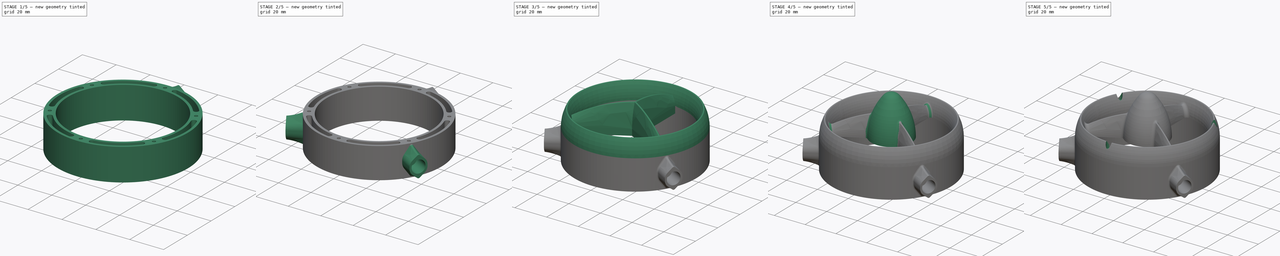
[diagram: build sequence overview — one tinted view per stage of 5, left to right]
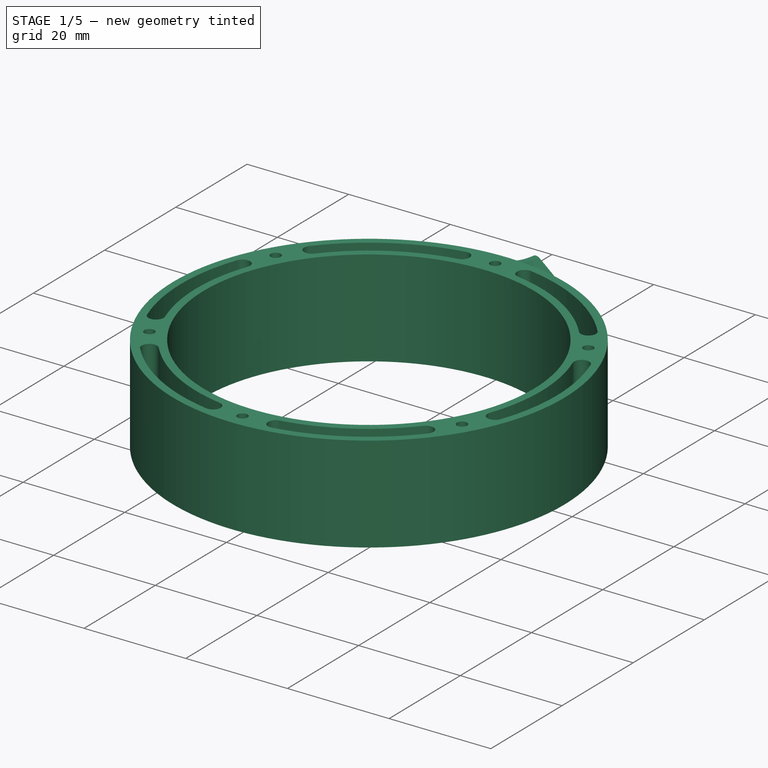
[diagram: stage 1 of 5 — iso view after this stage's code; geometry added in this stage tinted green]
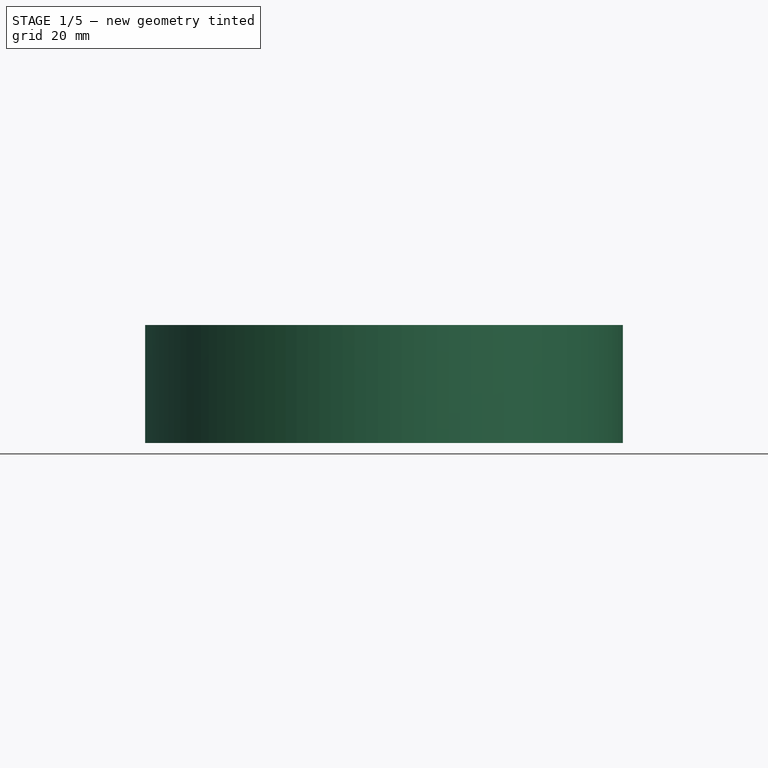
[diagram: stage 1 of 5 — front view after this stage's code; geometry added in this stage tinted green]
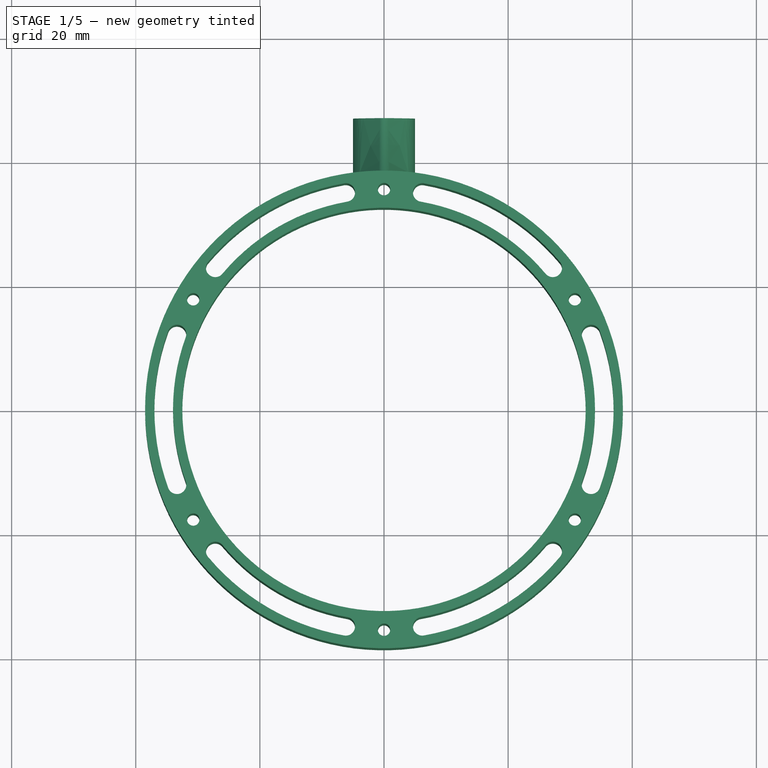
[diagram: stage 1 of 5 — top view after this stage's code; geometry added in this stage tinted green]
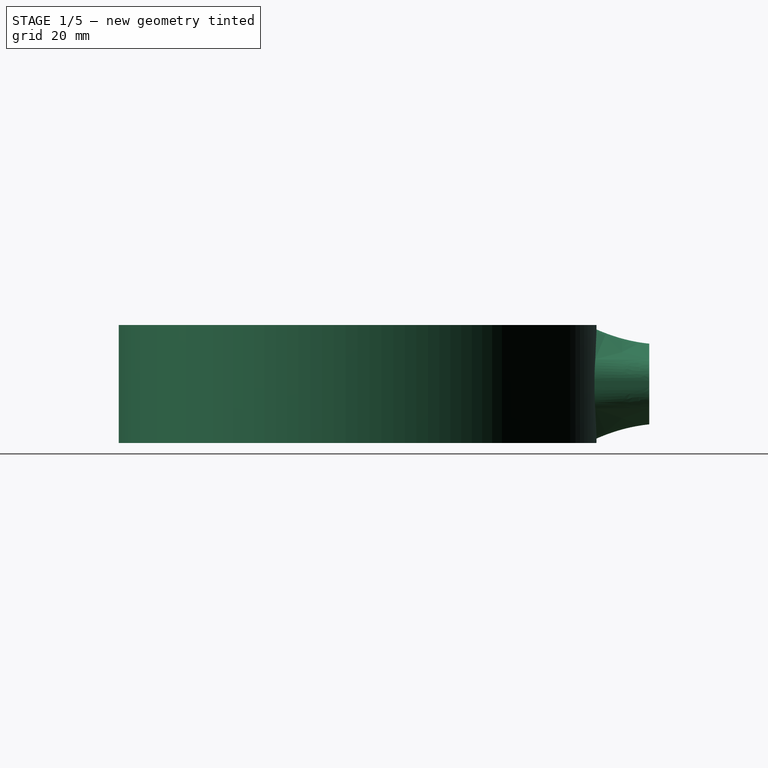
[diagram: stage 1 of 5 — right view after this stage's code; geometry added in this stage tinted green]
FCSTD DOCUMENT  (FreeCAD 0.18R4 (GitTag))
Label: anemometer_frame
License: All rights reserved
LicenseURL: http://en.wikipedia.org/wiki/All_rights_reserved
objects: Sketcher::SketchObject×15, PartDesign::PolarPattern×5, PartDesign::Pocket×4, PartDesign::Revolution×2, PartDesign::AdditiveLoft×2, PartDesign::Fillet×2, PartDesign::Hole×2, PartDesign::Body×2, PartDesign::Pad×1
note: 46 computed .brp shape members not serialized (recipe doc carries the construction recipe); baked Part::Feature solids carry a one-line shape summary decoded from their .brp

FEATURE [PartDesign::Body] Body  label="FRONT"
  Group = -> [Sketch,Revolution,Sketch001,Sketch002,Sketch003,Sketch004,AdditiveLoft,Sketch005,PolarPattern,Revolution001,Pocket,Fillet,Sketch006,Pocket001,Sketch007,Hole,Sketch008,Hole001,PolarPattern001]
  Origin = -> Origin
  Tip = -> PolarPattern001
FEATURE [Sketcher::SketchObject] Sketch009
  MapMode = 5
  Placement = pos=(0,0,0) rot=(0,1,0;3.14159rad)
  Support = -> [XY_Plane001]
  sketch-geometry (2):
    g0: Circle CenterX=0 CenterY=0 CenterZ=0 NormalX=0 NormalY=0 NormalZ=1 AngleXU=0 Radius=38.5
    g1: Circle CenterX=0 CenterY=0 CenterZ=0 NormalX=0 NormalY=0 NormalZ=1 AngleXU=0 Radius=32.5
  constraints (4):
    c: Coincident(g0,g-1)
    c: Coincident(g1,g0)
    c: Diameter(g0) = 77
    c: Diameter(g1) = 65
FEATURE [Sketcher::SketchObject] Sketch010
  MapMode = 5
  Placement = pos=(0,0,0) rot=(0,1,0;3.14159rad)
  Support = -> [XY_Plane001]
  sketch-geometry (8):
    g0: ArcOfCircle CenterX=-3.6e-15 CenterY=0 CenterZ=0 NormalX=0 NormalY=0 NormalZ=1 AngleXU=0 Radius=37 StartAngle=1.74533 EndAngle=2.44346
    g1: ArcOfCircle CenterX=-3.6e-15 CenterY=0 CenterZ=0 NormalX=0 NormalY=0 NormalZ=1 AngleXU=0 Radius=34 StartAngle=1.74533 EndAngle=2.44346
    g2: ArcOfCircle CenterX=-27.1946 CenterY=22.819 CenterZ=0 NormalX=0 NormalY=0 NormalZ=1 AngleXU=0 Radius=1.5 StartAngle=2.44346 EndAngle=5.58505
    g3: ArcOfCircle CenterX=-6.16451 CenterY=34.9607 CenterZ=0 NormalX=0 NormalY=0 NormalZ=1 AngleXU=0 Radius=1.5 StartAngle=4.88692 EndAngle=8.02851
    g4: LineSegment [constr] StartX=-6.16451 StartY=34.9607 StartZ=0 EndX=-3.6e-15 EndY=0 EndZ=0
    g5: LineSegment [constr] StartX=-3.6e-15 StartY=0 StartZ=0 EndX=-27.1946 EndY=22.819 EndZ=0
    g6: Circle CenterX=-30.7439 CenterY=17.75 CenterZ=0 NormalX=0 NormalY=0 NormalZ=1 AngleXU=0 Radius=1
    g7: LineSegment [constr] StartX=-30.7439 StartY=17.75 StartZ=0 EndX=-3.6e-15 EndY=0 EndZ=0
  constraints (19):
    c: Coincident(g0,g-1)
    c: Coincident(g1,g0)
    c: Tangent(g3,g0) = -1.5708
    c: Tangent(g3,g1) = 1.5708
    c: Tangent(g2,g1) = 1.5708
    c: Tangent(g2,g0) = -1.5708
    c: Coincident(g4,g3)
    c: Coincident(g4,g0)
    c: Coincident(g5,g0)
    c: Coincident(g5,g2)
    c: Angle(g-2,g4) = 0.174533
    c: Angle(g-2,g5) = 0.872665
    c: Radius(g1) = 34
    c: Radius(g0) = 37
    c: Coincident(g7,g6)
    c: Coincident(g7,g0)
    c: Distance(g7) = 35.5
    c: Diameter(g6) = 2
    c: Angle(g-2,g7) = 1.0472
FEATURE [PartDesign::Pad] Pad
  Length = 19
  Length2 = 100
  Profile = -> Sketch009
  Type = 0
FEATURE [PartDesign::Pocket] Pocket002
  BaseFeature = -> Pad
  Length = 5
  Length2 = 100
  Profile = -> Sketch010
  Reversed = true
  Type = 1
FEATURE [PartDesign::PolarPattern] PolarPattern002
  Angle = 360
  Axis = -> Z_Axis001
  BaseFeature = -> Pocket002
  Occurrences = 6
  Originals = -> [Pocket002]
FEATURE [Sketcher::SketchObject] Sketch011
  AttachmentOffset = pos=(0,0,37) rot=(0,0,1;0rad)
  MapMode = 5
  Placement = pos=(0,37,-8.2e-15) rot=(0,0.707107,0.707107;3.14159rad)
  Support = -> [XZ_Plane001]
  sketch-geometry (13):
    g0: Circle [constr] CenterX=0 CenterY=-9.5 CenterZ=0 NormalX=0 NormalY=0 NormalZ=1 AngleXU=0 Radius=3.9
    g1: LineSegment StartX=-0.847732 StartY=-0.469575 StartZ=0 EndX=-3.99526 EndY=-5.5 EndZ=0
    g2: LineSegment StartX=-5 StartY=-9 StartZ=0 EndX=-5 EndY=-10 EndZ=0
    g3: LineSegment StartX=-3.99526 StartY=-13.5 StartZ=0 EndX=-0.847732 EndY=-18.5304 EndZ=0
    g4: LineSegment StartX=0.847732 StartY=-18.5304 StartZ=0 EndX=3.99526 EndY=-13.5 EndZ=0
    g5: LineSegment StartX=5 StartY=-10 StartZ=0 EndX=5 EndY=-9 EndZ=0
    g6: LineSegment StartX=3.99526 StartY=-5.5 StartZ=0 EndX=0.847732 EndY=-0.469575 EndZ=0
    g7: ArcOfCircle CenterX=1.59849 CenterY=-9 CenterZ=0 NormalX=0 NormalY=0 NormalZ=1 AngleXU=0 Radius=6.59849 StartAngle=2.58249 EndAngle=3.14159
    g8: ArcOfCircle CenterX=-1.59849 CenterY=-9 CenterZ=0 NormalX=0 NormalY=0 NormalZ=1 AngleXU=0 Radius=6.59849 StartAngle=1e-16 EndAngle=0.559102
    g9: ArcOfCircle CenterX=-1.59849 CenterY=-10 CenterZ=0 NormalX=0 NormalY=0 NormalZ=1 AngleXU=0 Radius=6.59849 StartAngle=5.72408 EndAngle=6.28319
    g10: ArcOfCircle CenterX=1.59849 CenterY=-10 CenterZ=0 NormalX=0 NormalY=0 NormalZ=1 AngleXU=0 Radius=6.59849 StartAngle=3.14159 EndAngle=3.70069
    g11: ArcOfCircle CenterX=0 CenterY=-1 CenterZ=0 NormalX=0 NormalY=0 NormalZ=1 AngleXU=0 Radius=1 StartAngle=0.559102 EndAngle=2.58249
    g12: ArcOfCircle CenterX=0 CenterY=-18 CenterZ=0 NormalX=0 NormalY=0 NormalZ=1 AngleXU=0 Radius=1 StartAngle=3.70069 EndAngle=5.72408
  constraints (33):
    c: PointOnObject(g0,g-2)
    c: DistanceY(g0,g-1) = 9.5
    c: Diameter(g0) = 7.8
    c: Vertical(g2)
    c: Vertical(g5)
    c: Tangent(g2,g7) = -1.5708
    c: Tangent(g1,g7) = -1.5708
    c: Tangent(g6,g8) = -1.5708
    c: Tangent(g5,g8) = -1.5708
    c: Tangent(g5,g9) = -1.5708
    c: Tangent(g4,g9) = -1.5708
    c: Tangent(g3,g10) = -1.5708
    c: Tangent(g2,g10) = -1.5708
    c: Tangent(g1,g11) = -1.5708
    c: Tangent(g6,g11) = -1.5708
    c: Tangent(g3,g12) = -1.5708
    c: Tangent(g4,g12) = -1.5708
    c: PointOnObject(g12,g-2)
    c: PointOnObject(g11,g-2)
    c: Equal(g11,g12)
    c: Radius(g11) = 1
    c: Equal(g7,g8)
    c: Equal(g8,g9)
    c: Equal(g9,g10)
    c: Equal(g2,g5)
    c: Equal(g4,g3)
    c: Equal(g3,g1)
    c: Equal(g1,g6)
    c: DistanceY(g11,g-1) = 1
    c: DistanceY(g12,g-1) = 18
    c: DistanceX(g2,g5) = 10
    c: DistanceY(g2,g1) = 3.5
    c: DistanceY(g2,g2) = 1
FEATURE [Sketcher::SketchObject] Sketch012
  AttachmentOffset = pos=(0,0,37) rot=(0,0,1;0rad)
  MapMode = 5
  Placement = pos=(0,42,8.2e-15) rot=(0,0.707107,0.707107;3.14159rad)
  sketch-geometry (13):
    g0: Circle [constr] CenterX=0 CenterY=-9.5 CenterZ=0 NormalX=0 NormalY=0 NormalZ=1 AngleXU=0 Radius=3.9
    g1: LineSegment StartX=-0.737987 StartY=-2.32518 StartZ=0 EndX=-3.64104 EndY=-5.5 EndZ=0
    g2: LineSegment StartX=-5 StartY=-9 StartZ=0 EndX=-5 EndY=-10 EndZ=0
    g3: LineSegment StartX=-3.64104 StartY=-13.5 StartZ=0 EndX=-0.737987 EndY=-16.6748 EndZ=0
    g4: LineSegment StartX=0.737987 StartY=-16.6748 StartZ=0 EndX=3.64104 EndY=-13.5 EndZ=0
    g5: LineSegment StartX=5 StartY=-10 StartZ=0 EndX=5 EndY=-9 EndZ=0
    g6: LineSegment StartX=3.64104 StartY=-5.5 StartZ=0 EndX=0.737987 EndY=-2.32518 EndZ=0
    g7: ArcOfCircle CenterX=0.186603 CenterY=-9 CenterZ=0 NormalX=0 NormalY=0 NormalZ=1 AngleXU=0 Radius=5.1866 StartAngle=2.40088 EndAngle=3.14159
    g8: ArcOfCircle CenterX=-0.186603 CenterY=-9 CenterZ=0 NormalX=0 NormalY=0 NormalZ=1 AngleXU=0 Radius=5.1866 StartAngle=0 EndAngle=0.740715
    g9: ArcOfCircle CenterX=-0.186603 CenterY=-10 CenterZ=0 NormalX=0 NormalY=0 NormalZ=1 AngleXU=0 Radius=5.1866 StartAngle=5.54247 EndAngle=6.28319
    g10: ArcOfCircle CenterX=0.186603 CenterY=-10 CenterZ=0 NormalX=0 NormalY=0 NormalZ=1 AngleXU=0 Radius=5.1866 StartAngle=3.14159 EndAngle=3.88231
    g11: ArcOfCircle CenterX=0 CenterY=-3 CenterZ=0 NormalX=0 NormalY=0 NormalZ=1 AngleXU=0 Radius=1 StartAngle=0.740715 EndAngle=2.40088
    g12: ArcOfCircle CenterX=0 CenterY=-16 CenterZ=0 NormalX=0 NormalY=0 NormalZ=1 AngleXU=0 Radius=1 StartAngle=3.88231 EndAngle=5.54247
  constraints (33):
    c: PointOnObject(g0,g-2)
    c: DistanceY(g0,g-1) = 9.5
    c: Diameter(g0) = 7.8
    c: Vertical(g2)
    c: Vertical(g5)
    c: Tangent(g2,g7) = -1.5708
    c: Tangent(g1,g7) = -1.5708
    c: Tangent(g6,g8) = -1.5708
    c: Tangent(g5,g8) = -1.5708
    c: Tangent(g5,g9) = -1.5708
    c: Tangent(g4,g9) = -1.5708
    c: Tangent(g3,g10) = -1.5708
    c: Tangent(g2,g10) = -1.5708
    c: Tangent(g1,g11) = -1.5708
    c: Tangent(g6,g11) = -1.5708
    c: Tangent(g3,g12) = -1.5708
    c: Tangent(g4,g12) = -1.5708
    c: PointOnObject(g12,g-2)
    c: PointOnObject(g11,g-2)
    c: Equal(g11,g12)
    c: Radius(g11) = 1
    c: Equal(g7,g8)
    c: Equal(g8,g9)
    c: Equal(g9,g10)
    c: Equal(g2,g5)
    c: Equal(g4,g3)
    c: Equal(g3,g1)
    c: Equal(g1,g6)
    c: DistanceY(g11,g-1) = 3
    c: DistanceY(g12,g-1) = 16
    c: DistanceX(g2,g5) = 10
    c: DistanceY(g2,g1) = 3.5
    c: DistanceY(g2,g2) = 1
FEATURE [Sketcher::SketchObject] Sketch013
  AttachmentOffset = pos=(0,0,37) rot=(0,0,1;0rad)
  MapMode = 5
  Placement = pos=(0,47,8e-15) rot=(0,0.707107,0.707107;3.14159rad)
  sketch-geometry (13):
    g0: Circle [constr] CenterX=0 CenterY=-9.5 CenterZ=0 NormalX=0 NormalY=0 NormalZ=1 AngleXU=0 Radius=3.9
    g1: LineSegment StartX=-0.640321 StartY=-3.23189 StartZ=0 EndX=-3.36107 EndY=-5.5 EndZ=0
    g2: LineSegment StartX=-5 StartY=-9 StartZ=0 EndX=-5 EndY=-10 EndZ=0
    g3: LineSegment StartX=-3.36107 StartY=-13.5 StartZ=0 EndX=-0.640321 EndY=-15.7681 EndZ=0
    g4: LineSegment StartX=0.640321 StartY=-15.7681 StartZ=0 EndX=3.36107 EndY=-13.5 EndZ=0
    g5: LineSegment StartX=5 StartY=-10 StartZ=0 EndX=5 EndY=-9 EndZ=0
    g6: LineSegment StartX=3.36107 StartY=-5.5 StartZ=0 EndX=0.640321 EndY=-3.23189 EndZ=0
    g7: ArcOfCircle CenterX=-0.443346 CenterY=-9 CenterZ=0 NormalX=0 NormalY=0 NormalZ=1 AngleXU=0 Radius=4.55665 StartAngle=2.26571 EndAngle=3.14159
    g8: ArcOfCircle CenterX=0.443346 CenterY=-9 CenterZ=0 NormalX=0 NormalY=0 NormalZ=1 AngleXU=0 Radius=4.55665 StartAngle=1e-16 EndAngle=0.87588
    g9: ArcOfCircle CenterX=0.443346 CenterY=-10 CenterZ=0 NormalX=0 NormalY=0 NormalZ=1 AngleXU=0 Radius=4.55665 StartAngle=5.4073 EndAngle=6.28319
    g10: ArcOfCircle CenterX=-0.443346 CenterY=-10 CenterZ=0 NormalX=0 NormalY=0 NormalZ=1 AngleXU=0 Radius=4.55665 StartAngle=3.14159 EndAngle=4.01747
    g11: ArcOfCircle CenterX=0 CenterY=-4 CenterZ=0 NormalX=0 NormalY=0 NormalZ=1 AngleXU=0 Radius=1 StartAngle=0.87588 EndAngle=2.26571
    g12: ArcOfCircle CenterX=0 CenterY=-15 CenterZ=0 NormalX=0 NormalY=0 NormalZ=1 AngleXU=0 Radius=1 StartAngle=4.01747 EndAngle=5.4073
  constraints (33):
    c: PointOnObject(g0,g-2)
    c: DistanceY(g0,g-1) = 9.5
    c: Diameter(g0) = 7.8
    c: Vertical(g2)
    c: Vertical(g5)
    c: Tangent(g2,g7) = -1.5708
    c: Tangent(g1,g7) = -1.5708
    c: Tangent(g6,g8) = -1.5708
    c: Tangent(g5,g8) = -1.5708
    c: Tangent(g5,g9) = -1.5708
    c: Tangent(g4,g9) = -1.5708
    c: Tangent(g3,g10) = -1.5708
    c: Tangent(g2,g10) = -1.5708
    c: Tangent(g1,g11) = -1.5708
    c: Tangent(g6,g11) = -1.5708
    c: Tangent(g3,g12) = -1.5708
    c: Tangent(g4,g12) = -1.5708
    c: PointOnObject(g12,g-2)
    c: PointOnObject(g11,g-2)
    c: Equal(g11,g12)
    c: Radius(g11) = 1
    c: Equal(g7,g8)
    c: Equal(g8,g9)
    c: Equal(g9,g10)
    c: Equal(g2,g5)
    c: Equal(g4,g3)
    c: Equal(g3,g1)
    c: Equal(g1,g6)
    c: DistanceY(g11,g-1) = 4
    c: DistanceY(g12,g-1) = 15
    c: DistanceX(g2,g5) = 10
    c: DistanceY(g2,g1) = 3.5
    c: DistanceY(g2,g2) = 1
FEATURE [PartDesign::AdditiveLoft] AdditiveLoft001
  BaseFeature = -> PolarPattern002
  Closed = false
  Profile = -> Sketch011
  Ruled = false
  Sections = -> [Sketch011,Sketch012,Sketch013]
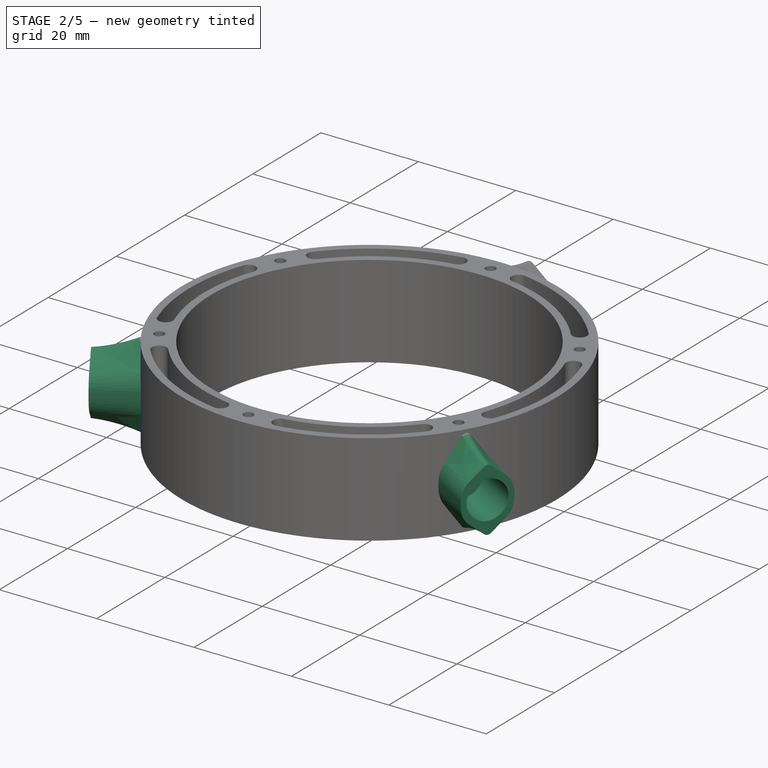
[diagram: stage 2 of 5 — iso view after this stage's code; geometry added in this stage tinted green]
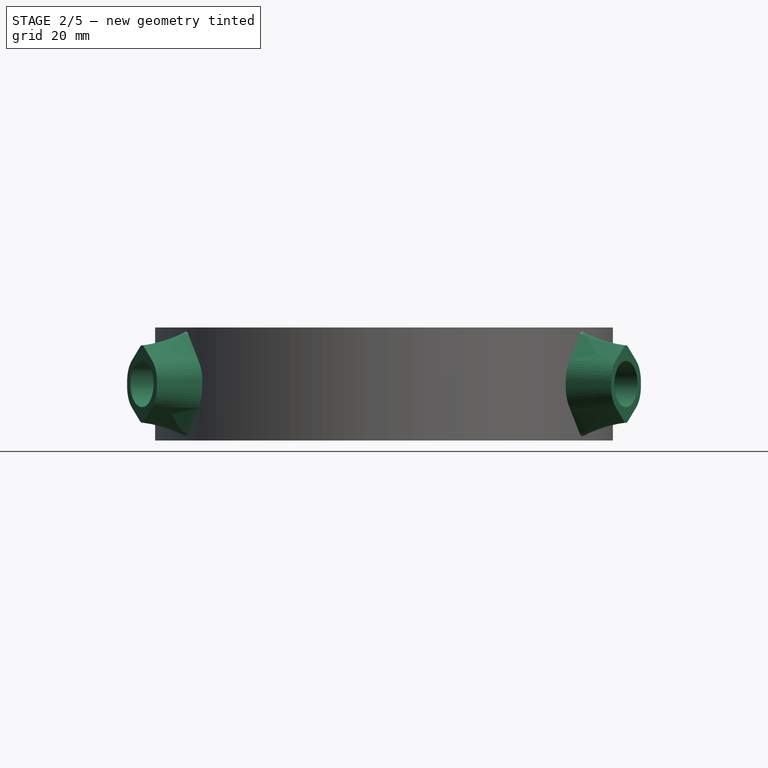
[diagram: stage 2 of 5 — front view after this stage's code; geometry added in this stage tinted green]
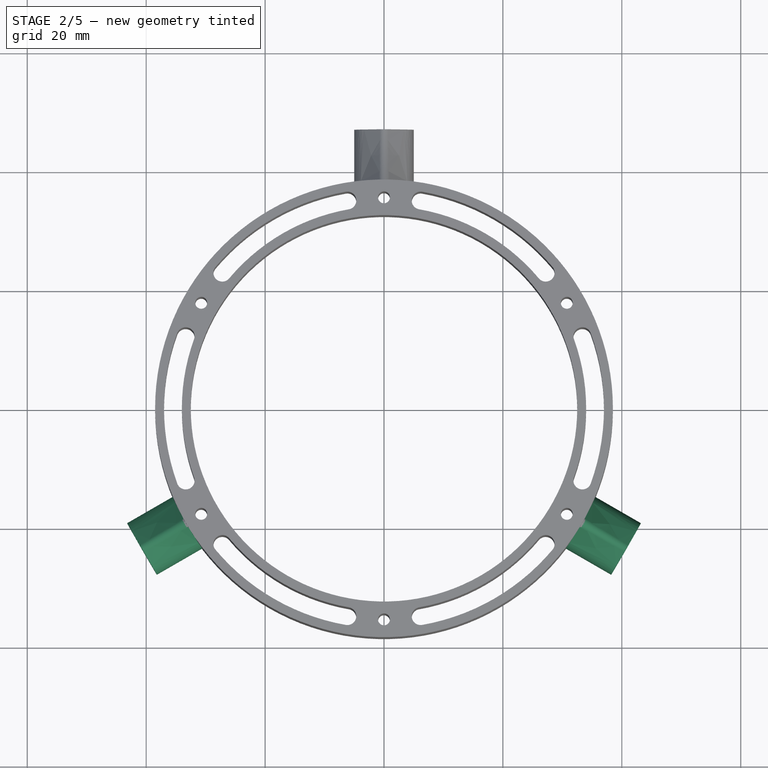
[diagram: stage 2 of 5 — top view after this stage's code; geometry added in this stage tinted green]
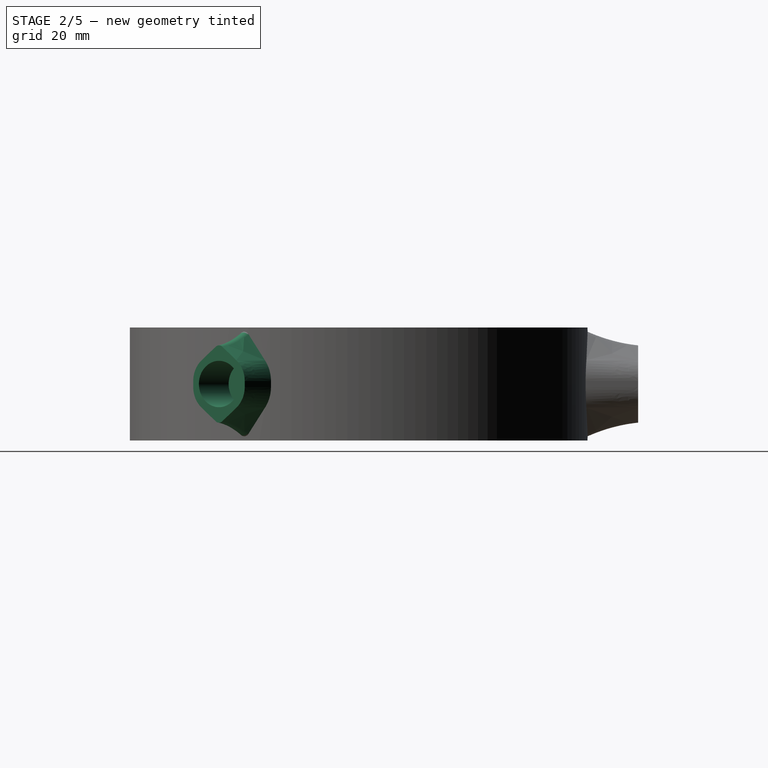
[diagram: stage 2 of 5 — right view after this stage's code; geometry added in this stage tinted green]
FEATURE [PartDesign::PolarPattern] PolarPattern003
  Angle = 360
  Axis = -> Z_Axis001
  BaseFeature = -> AdditiveLoft001
  Occurrences = 3
  Originals = -> [AdditiveLoft001]
FEATURE [Sketcher::SketchObject] Sketch014
  MapMode = 5
  Placement = pos=(0,47,0) rot=(0,0.707107,0.707107;3.14159rad)
  Support = -> [PolarPattern003]
  sketch-geometry (1):
    g0: Circle CenterX=0 CenterY=-9.5 CenterZ=0 NormalX=0 NormalY=0 NormalZ=1 AngleXU=0 Radius=3.9
  constraints (3):
    c: PointOnObject(g0,g-2)
    c: DistanceY(g0,g-1) = 9.5
    c: Diameter(g0) = 7.8
FEATURE [PartDesign::Pocket] Pocket003
  BaseFeature = -> PolarPattern003
  Length = 10
  Length2 = 100
  Profile = -> Sketch014
  Type = 0
FEATURE [PartDesign::PolarPattern] PolarPattern004
  Angle = 360
  Axis = -> Z_Axis001
  BaseFeature = -> Pocket003
  Occurrences = 3
  Originals = -> [Pocket003]
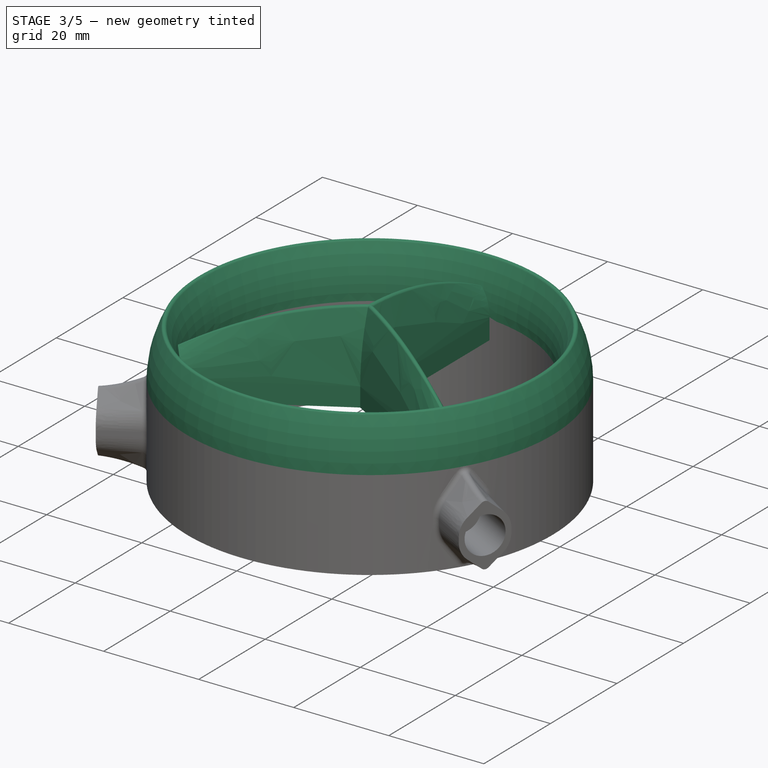
[diagram: stage 3 of 5 — iso view after this stage's code; geometry added in this stage tinted green]
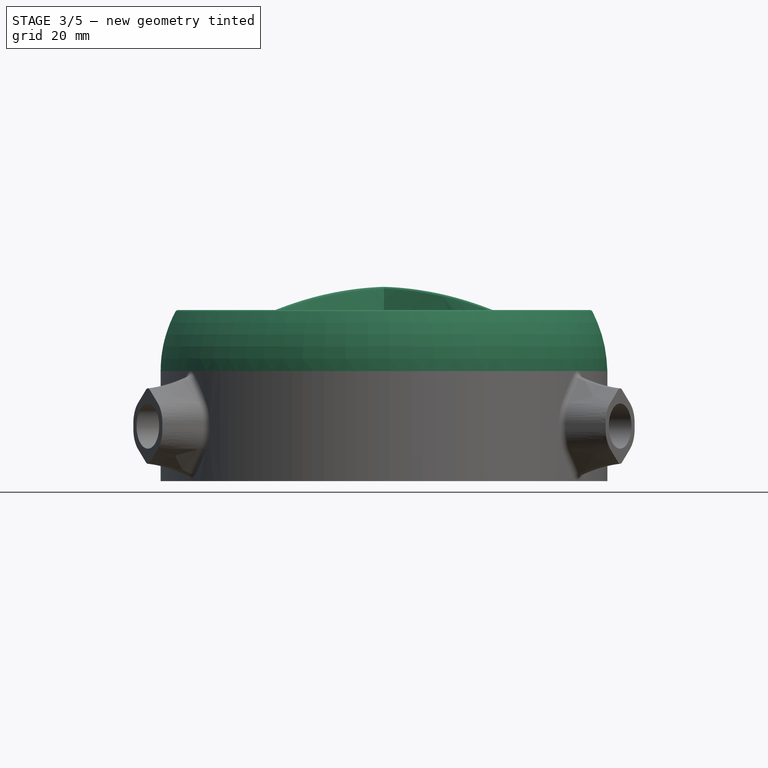
[diagram: stage 3 of 5 — front view after this stage's code; geometry added in this stage tinted green]
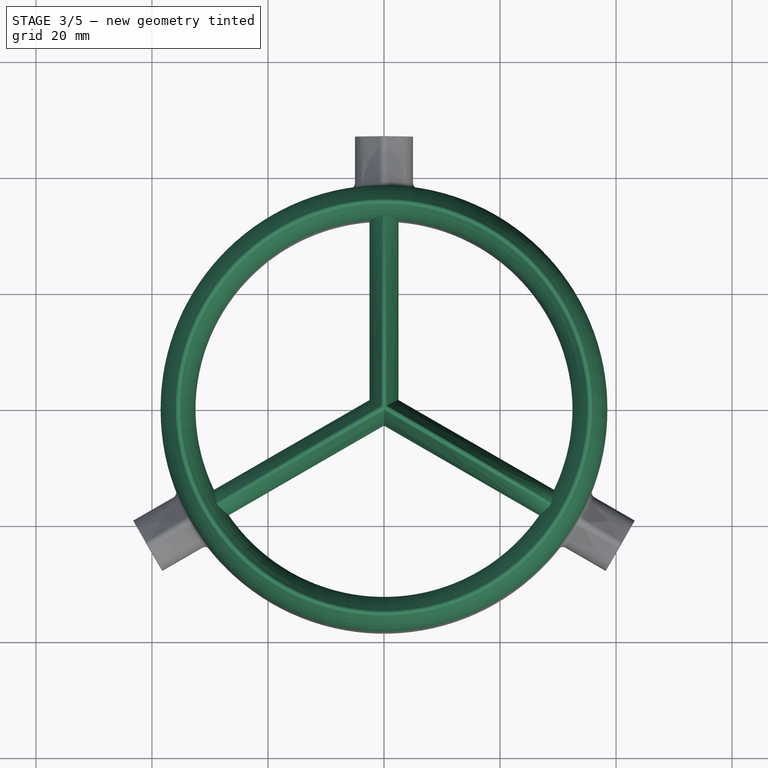
[diagram: stage 3 of 5 — top view after this stage's code; geometry added in this stage tinted green]
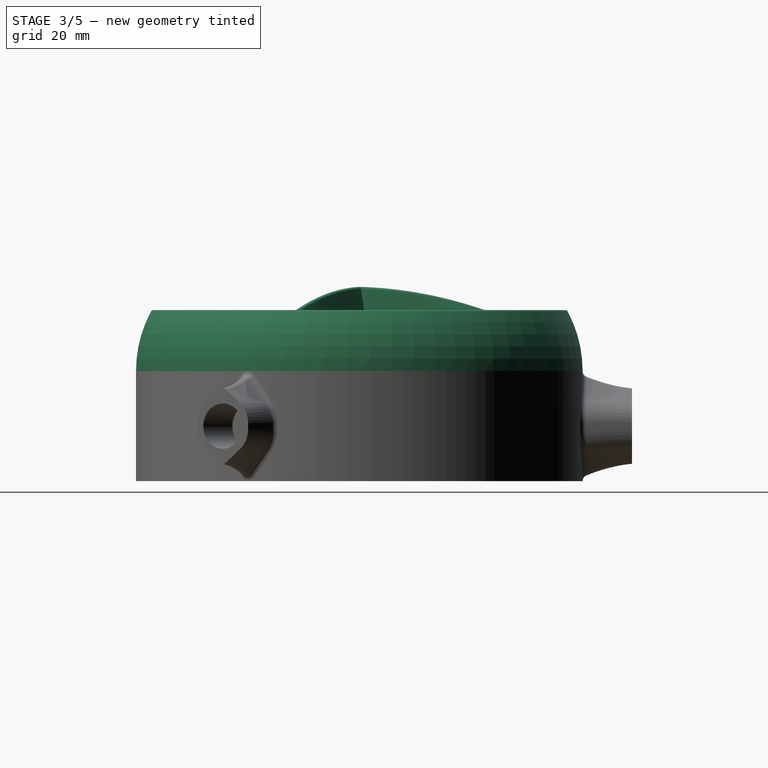
[diagram: stage 3 of 5 — right view after this stage's code; geometry added in this stage tinted green]
FEATURE [Sketcher::SketchObject] Sketch
  MapMode = 5
  Placement = pos=(0,0,0) rot=(1,0,0;1.5708rad)
  Support = -> [XZ_Plane]
  sketch-geometry (7):
    g0: ArcOfCircle CenterX=-16.75 CenterY=0 CenterZ=0 NormalX=0 NormalY=0 NormalZ=1 AngleXU=0 Radius=21.75 StartAngle=2.65164 EndAngle=3.14159
    g1: ArcOfCircle CenterX=-54.25 CenterY=0 CenterZ=0 NormalX=0 NormalY=0 NormalZ=1 AngleXU=0 Radius=21.75 StartAngle=0 EndAngle=0.489957
    g2: ArcOfCircle CenterX=-35.5 CenterY=10 CenterZ=0 NormalX=0 NormalY=0 NormalZ=1 AngleXU=0 Radius=0.5 StartAngle=0.489957 EndAngle=2.65164
    g3: LineSegment [constr] StartX=-35.9412 StartY=10.2353 StartZ=0 EndX=-35.0588 EndY=10.2353 EndZ=0
    g4: LineSegment [constr] StartX=-38.5 StartY=0 StartZ=0 EndX=-38.5 EndY=-4 EndZ=0
    g5: LineSegment [constr] StartX=-32.5 StartY=0 StartZ=0 EndX=-32.5 EndY=-4 EndZ=0
    g6: LineSegment StartX=-38.5 StartY=0 StartZ=0 EndX=-32.5 EndY=0 EndZ=0
  constraints (19):
    c: PointOnObject(g0,g-1)
    c: PointOnObject(g0,g-1)
    c: PointOnObject(g1,g-1)
    c: PointOnObject(g1,g-1)
    c: Tangent(g2,g1) = -1.5708
    c: Tangent(g2,g0) = -1.5708
    c: Coincident(g3,g0)
    c: Coincident(g3,g1)
    c: Horizontal(g3)
    c: Diameter(g2) = 1
    c: DistanceY(g-1,g2) = 10
    c: DistanceX(g0,g1) = 6
    c: Tangent(g4,g0) = -1.5708
    c: Tangent(g5,g1) = 1.5708
    c: Equal(g4,g5)
    c: DistanceY(g4,g4) = 4
    c: DistanceX(g1,g-1) = 32.5
    c: Coincident(g6,g0)
    c: Coincident(g6,g1)
FEATURE [PartDesign::Revolution] Revolution
  Angle = 360
  Axis = (0,2e-16,1)
  Base = (0,0,0)
  Placement = pos=(0,0,0) rot=(1,0,0;1.5708rad)
  Profile = -> Sketch
  ReferenceAxis = -> Sketch [V_Axis]
FEATURE [Sketcher::SketchObject] Sketch001
  MapMode = 3
  Placement = pos=(0,0,0) rot=(1,0,0;1.5708rad)
  sketch-geometry (8):
    g0: ArcOfCircle CenterX=48 CenterY=0 CenterZ=0 NormalX=0 NormalY=0 NormalZ=1 AngleXU=0 Radius=50.5 StartAngle=2.8578 EndAngle=3.14159
    g1: ArcOfCircle CenterX=-48 CenterY=0 CenterZ=0 NormalX=0 NormalY=0 NormalZ=1 AngleXU=0 Radius=50.5 StartAngle=0 EndAngle=0.283794
    g2: ArcOfCircle CenterX=1.1e-15 CenterY=14 CenterZ=0 NormalX=0 NormalY=0 NormalZ=1 AngleXU=0 Radius=0.5 StartAngle=0.283794 EndAngle=2.8578
    g3: LineSegment [constr] StartX=-0.48 StartY=14.14 StartZ=0 EndX=0.48 EndY=14.14 EndZ=0
    g4: LineSegment StartX=-2.5 StartY=6.2e-15 StartZ=0 EndX=-2.5 EndY=-4 EndZ=0
    g5: LineSegment StartX=2.5 StartY=0 StartZ=0 EndX=2.5 EndY=-4 EndZ=0
    g6: LineSegment [constr] StartX=-2.5 StartY=6.2e-15 StartZ=0 EndX=2.5 EndY=0 EndZ=0
    g7: LineSegment StartX=-2.5 StartY=-4 StartZ=0 EndX=2.5 EndY=-4 EndZ=0
  constraints (21):
    c: PointOnObject(g0,g-1)
    c: PointOnObject(g0,g-1)
    c: PointOnObject(g1,g-1)
    c: PointOnObject(g1,g-1)
    c: Tangent(g2,g1) = -1.5708
    c: Tangent(g2,g0) = -1.5708
    c: Coincident(g3,g0)
    c: Coincident(g3,g1)
    c: Horizontal(g3)
    c: Diameter(g2) = 1
    c: DistanceY(g-1,g2) = 14
    c: DistanceX(g0,g1) = 5
    c: Tangent(g4,g0) = -1.5708
    c: Tangent(g5,g1) = 1.5708
    c: Equal(g4,g5)
    c: DistanceY(g4,g4) = 4
    c: Coincident(g6,g0)
    c: Coincident(g6,g1)
    c: DistanceX(g-1,g1) = 2.5
    c: Coincident(g7,g4)
    c: Coincident(g7,g5)
FEATURE [Sketcher::SketchObject] Sketch002
  MapMode = 3
  Placement = pos=(0,10,0) rot=(1,0,0;1.5708rad)
  sketch-geometry (8):
    g0: ArcOfCircle CenterX=41.25 CenterY=0 CenterZ=0 NormalX=0 NormalY=0 NormalZ=1 AngleXU=0 Radius=43.75 StartAngle=2.83629 EndAngle=3.14159
    g1: ArcOfCircle CenterX=-41.25 CenterY=0 CenterZ=0 NormalX=0 NormalY=0 NormalZ=1 AngleXU=0 Radius=43.75 StartAngle=0 EndAngle=0.305299
    g2: ArcOfCircle CenterX=2.3e-15 CenterY=13 CenterZ=0 NormalX=0 NormalY=0 NormalZ=1 AngleXU=0 Radius=0.5 StartAngle=0.305299 EndAngle=2.83629
    g3: LineSegment [constr] StartX=-0.476879 StartY=13.1503 StartZ=0 EndX=0.476879 EndY=13.1503 EndZ=0
    g4: LineSegment StartX=-2.5 StartY=0 StartZ=0 EndX=-2.5 EndY=-4 EndZ=0
    g5: LineSegment StartX=2.5 StartY=0 StartZ=0 EndX=2.5 EndY=-4 EndZ=0
    g6: LineSegment [constr] StartX=-2.5 StartY=0 StartZ=0 EndX=2.5 EndY=0 EndZ=0
    g7: LineSegment StartX=2.5 StartY=-4 StartZ=0 EndX=-2.5 EndY=-4 EndZ=0
  constraints (21):
    c: PointOnObject(g0,g-1)
    c: PointOnObject(g0,g-1)
    c: PointOnObject(g1,g-1)
    c: PointOnObject(g1,g-1)
    c: Tangent(g2,g1) = -1.5708
    c: Tangent(g2,g0) = -1.5708
    c: Coincident(g3,g0)
    c: Coincident(g3,g1)
    c: Horizontal(g3)
    c: Diameter(g2) = 1
    c: DistanceY(g-1,g2) = 13
    c: DistanceX(g0,g1) = 5
    c: Tangent(g4,g0) = -1.5708
    c: Tangent(g5,g1) = 1.5708
    c: Equal(g4,g5)
    c: DistanceY(g4,g4) = 4
    c: Coincident(g6,g0)
    c: Coincident(g6,g1)
    c: DistanceX(g-1,g1) = 2.5
    c: Coincident(g7,g5)
    c: Coincident(g7,g4)
FEATURE [Sketcher::SketchObject] Sketch003
  MapMode = 3
  Placement = pos=(0,35,0) rot=(1,0,0;1.5708rad)
  sketch-geometry (8):
    g0: ArcOfCircle CenterX=3 CenterY=0 CenterZ=0 NormalX=0 NormalY=0 NormalZ=1 AngleXU=0 Radius=5.5 StartAngle=2.2143 EndAngle=3.14159
    g1: ArcOfCircle CenterX=-3 CenterY=0 CenterZ=0 NormalX=0 NormalY=0 NormalZ=1 AngleXU=0 Radius=5.5 StartAngle=0 EndAngle=0.927295
    g2: ArcOfCircle CenterX=5e-16 CenterY=4 CenterZ=0 NormalX=0 NormalY=0 NormalZ=1 AngleXU=0 Radius=0.5 StartAngle=0.927295 EndAngle=2.2143
    g3: LineSegment [constr] StartX=-0.3 StartY=4.4 StartZ=0 EndX=0.3 EndY=4.4 EndZ=0
    g4: LineSegment StartX=-2.5 StartY=7e-16 StartZ=0 EndX=-2.5 EndY=-4 EndZ=0
    g5: LineSegment StartX=2.5 StartY=0 StartZ=0 EndX=2.5 EndY=-4 EndZ=0
    g6: LineSegment [constr] StartX=-2.5 StartY=7e-16 StartZ=0 EndX=2.5 EndY=0 EndZ=0
    g7: LineSegment StartX=-2.5 StartY=-4 StartZ=0 EndX=2.5 EndY=-4 EndZ=0
  constraints (21):
    c: PointOnObject(g0,g-1)
    c: PointOnObject(g0,g-1)
    c: PointOnObject(g1,g-1)
    c: PointOnObject(g1,g-1)
    c: Tangent(g2,g1) = -1.5708
    c: Tangent(g2,g0) = -1.5708
    c: Coincident(g3,g0)
    c: Coincident(g3,g1)
    c: Horizontal(g3)
    c: Diameter(g2) = 1
    c: DistanceY(g-1,g2) = 4
    c: DistanceX(g0,g1) = 5
    c: Tangent(g4,g0) = -1.5708
    c: Tangent(g5,g1) = 1.5708
    c: Equal(g4,g5)
    c: DistanceY(g4,g4) = 4
    c: Coincident(g6,g0)
    c: Coincident(g6,g1)
    c: DistanceX(g-1,g1) = 2.5
    c: Coincident(g7,g4)
    c: Coincident(g7,g5)
FEATURE [Sketcher::SketchObject] Sketch004
  MapMode = 2
  Placement = pos=(0,0,0) rot=(1,0,0;1.5708rad)
  sketch-geometry (5):
    g0: ArcOfCircle CenterX=-25.0714 CenterY=0 CenterZ=0 NormalX=0 NormalY=0 NormalZ=1 AngleXU=0 Radius=38.0714 StartAngle=0 EndAngle=0.67335
    g1: ArcOfCircle CenterX=0 CenterY=20 CenterZ=0 NormalX=0 NormalY=0 NormalZ=1 AngleXU=0 Radius=6 StartAngle=0.67335 EndAngle=1.5708
    g2: LineSegment [constr] StartX=13 StartY=0 StartZ=0 EndX=13 EndY=-4 EndZ=0
    g3: LineSegment StartX=0 StartY=0 StartZ=0 EndX=13 EndY=0 EndZ=0
    g4: LineSegment StartX=0 StartY=0 StartZ=0 EndX=0 EndY=26 EndZ=0
  constraints (14):
    c: PointOnObject(g0,g-1)
    c: Tangent(g1,g0) = -1.5708
    c: Diameter(g1) = 12
    c: DistanceY(g-1,g1) = 20
    c: Tangent(g2,g0) = 1.5708
    c: DistanceX(g-1,g0) = 13
    c: Coincident(g3,g-1)
    c: Coincident(g3,g0)
    c: Coincident(g4,g3)
    c: PointOnObject(g1,g-2)
    c: PointOnObject(g1,g-2)
    c: PointOnObject(g0,g-1)
    c: Coincident(g4,g1)
    c: DistanceY(g2,g2) = 4
FEATURE [PartDesign::AdditiveLoft] AdditiveLoft
  BaseFeature = -> Revolution
  Closed = false
  Placement = pos=(0,0,0) rot=(1,0,0;1.5708rad)
  Profile = -> Sketch003
  Ruled = false
  Sections = -> [Sketch003,Sketch002,Sketch001]
FEATURE [Sketcher::SketchObject] Sketch005
  MapMode = 5
  Support = -> [XY_Plane]
  sketch-geometry (1):
    g0: Circle CenterX=0 CenterY=0 CenterZ=0 NormalX=0 NormalY=0 NormalZ=1 AngleXU=0 Radius=50
  constraints (2):
    c: Coincident(g0,g-1)
    c: Diameter(g0) = 100
FEATURE [PartDesign::PolarPattern] PolarPattern
  Angle = 360
  Axis = -> Z_Axis
  BaseFeature = -> AdditiveLoft
  Occurrences = 3
  Originals = -> [AdditiveLoft]
  Placement = pos=(0,0,0) rot=(1,0,0;1.5708rad)
FEATURE [PartDesign::Fillet] Fillet001
  Base = -> PolarPattern004 [Edge20,Edge32,Edge6]
  BaseFeature = -> PolarPattern004
  Radius = 1
FEATURE [PartDesign::Body] Body001  label="MID"
  Group = -> [Sketch009,Sketch010,Pad,Pocket002,PolarPattern002,Sketch011,Sketch012,Sketch013,AdditiveLoft001,PolarPattern003,Sketch014,Pocket003,PolarPattern004,Fillet001]
  Origin = -> Origin001
  Tip = -> Fillet001
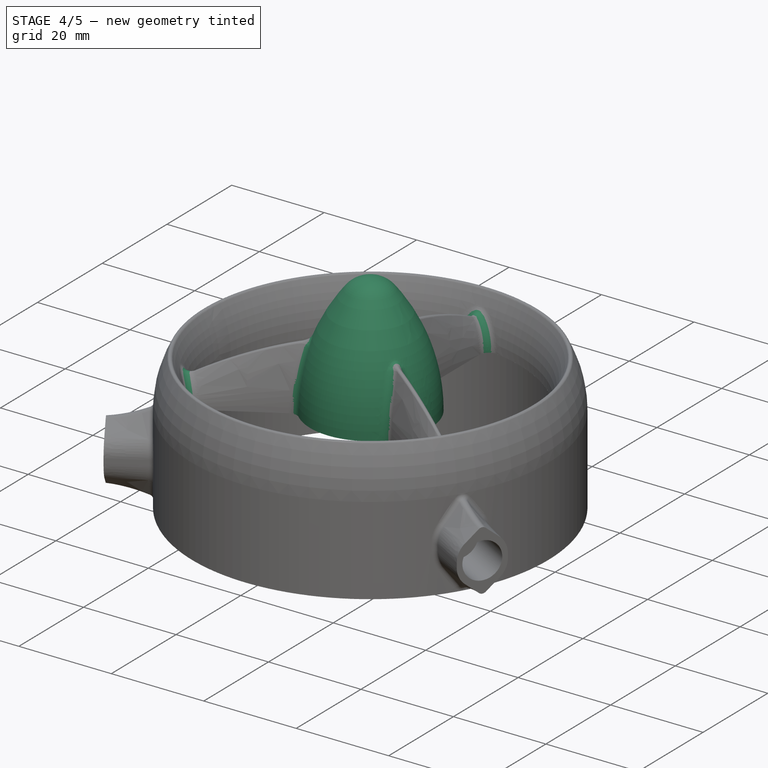
[diagram: stage 4 of 5 — iso view after this stage's code; geometry added in this stage tinted green]
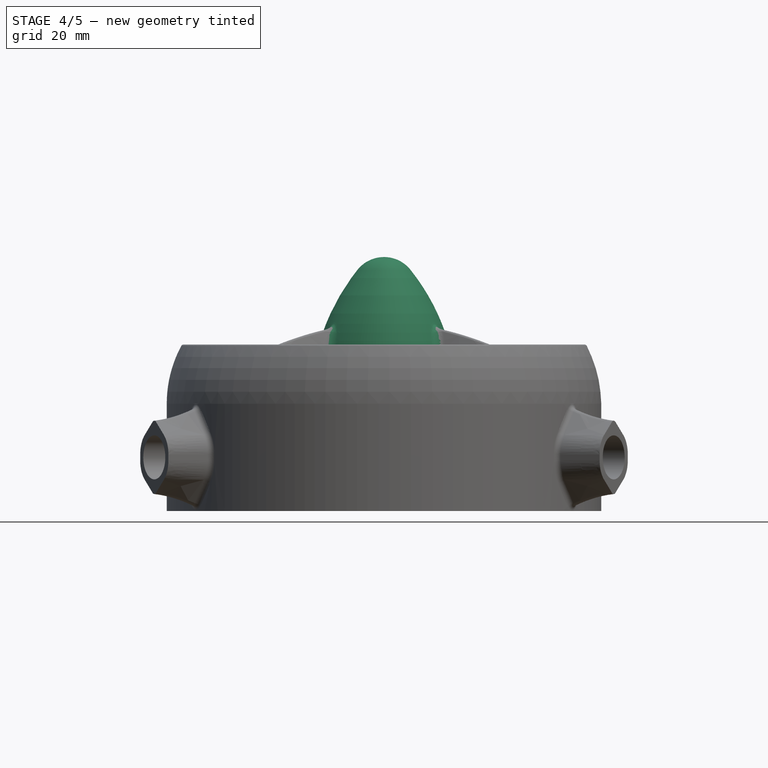
[diagram: stage 4 of 5 — front view after this stage's code; geometry added in this stage tinted green]
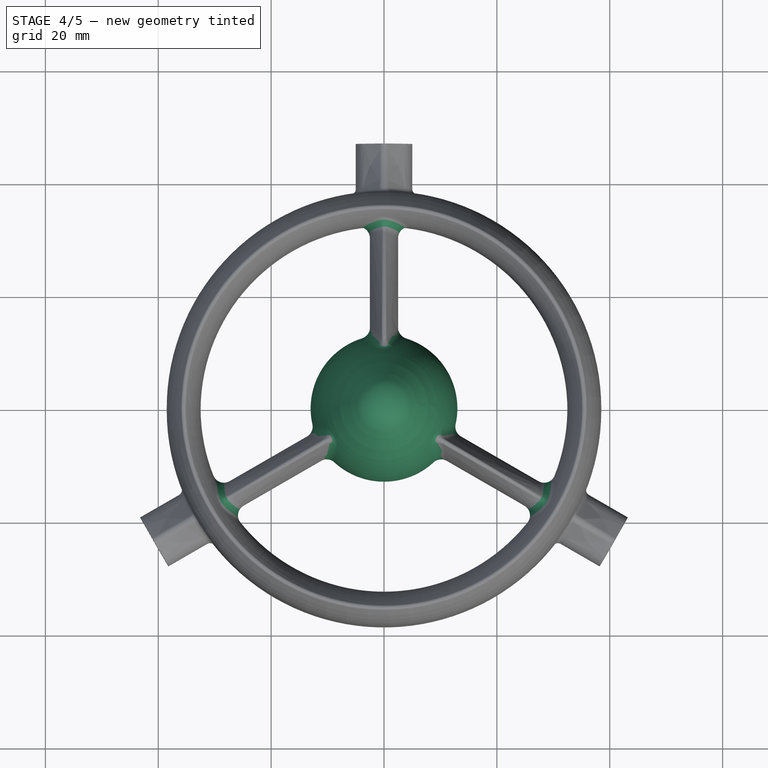
[diagram: stage 4 of 5 — top view after this stage's code; geometry added in this stage tinted green]
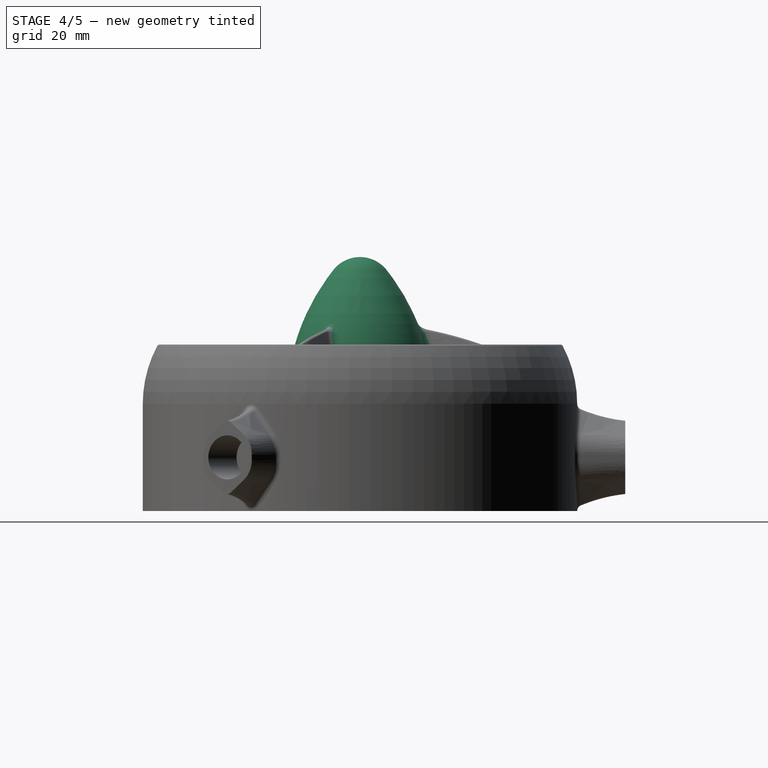
[diagram: stage 4 of 5 — right view after this stage's code; geometry added in this stage tinted green]
FEATURE [PartDesign::Revolution] Revolution001
  Angle = 360
  Axis = (-3e-16,3e-16,1)
  Base = (0,0,0)
  BaseFeature = -> PolarPattern
  Placement = pos=(0,0,0) rot=(1,0,0;1.5708rad)
  Profile = -> Sketch004
  ReferenceAxis = -> Z_Axis
  Reversed = true
FEATURE [PartDesign::Pocket] Pocket
  BaseFeature = -> Revolution001
  Length = 5
  Length2 = 100
  Placement = pos=(0,0,0) rot=(1,0,0;1.5708rad)
  Profile = -> Sketch005
  Refine = true
  Type = 1
FEATURE [PartDesign::Fillet] Fillet
  Base = -> Pocket [Edge14,Edge6,Edge10,Edge35,Edge28,Edge21]
  BaseFeature = -> Pocket
  Placement = pos=(0,0,0) rot=(1,0,0;1.5708rad)
  Radius = 2
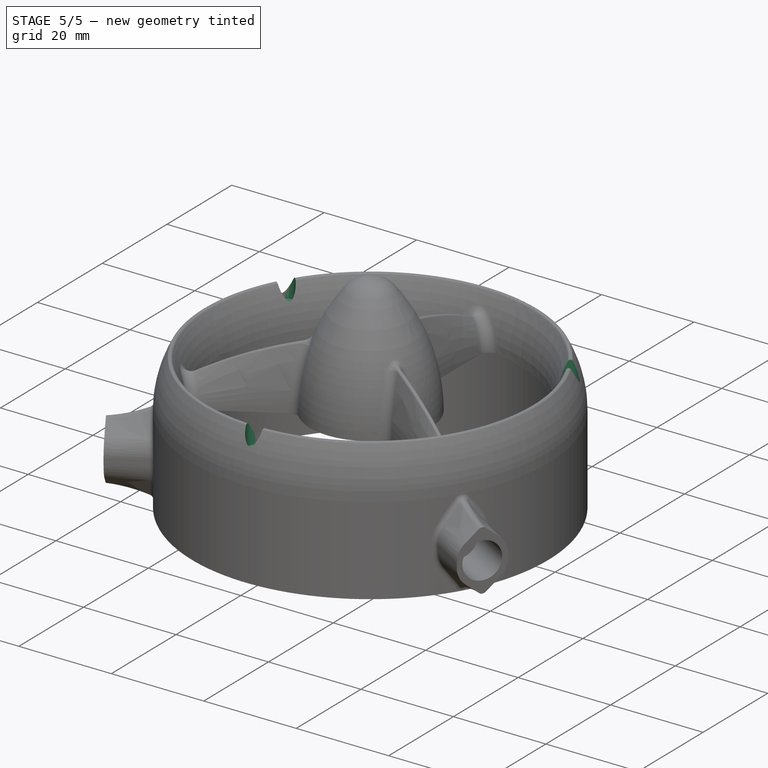
[diagram: stage 5 of 5 — iso view after this stage's code; geometry added in this stage tinted green]
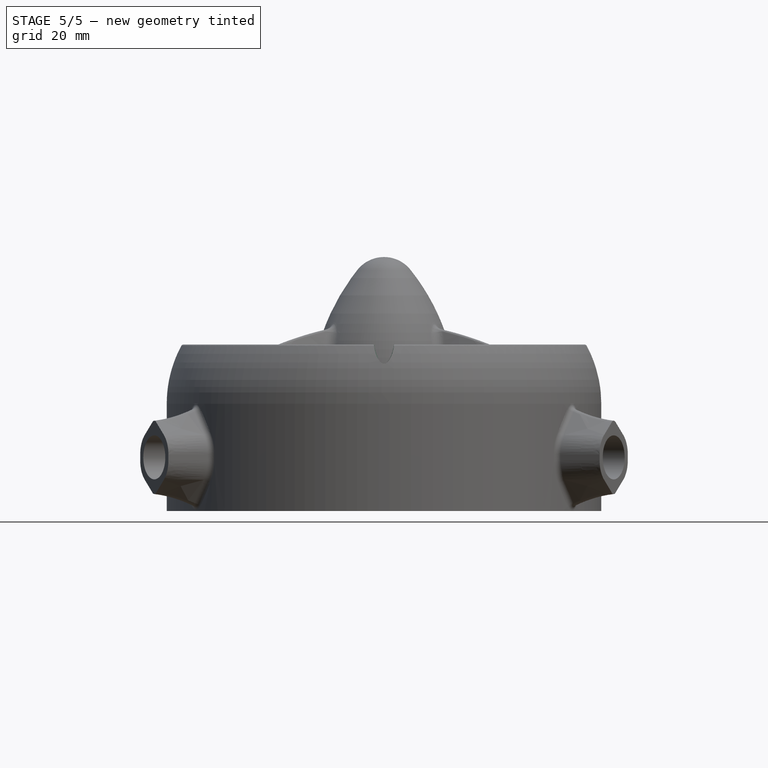
[diagram: stage 5 of 5 — front view after this stage's code; geometry added in this stage tinted green]
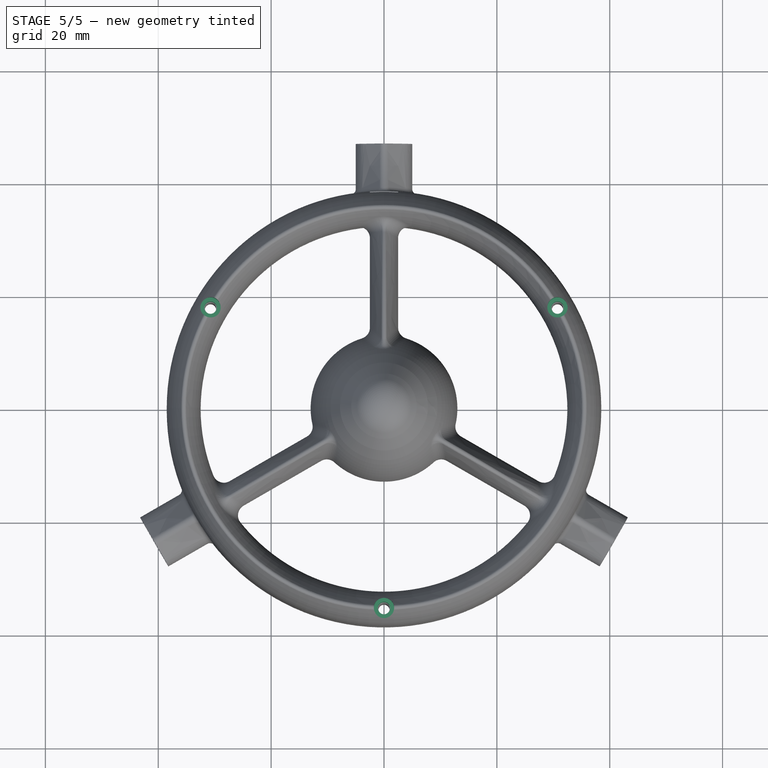
[diagram: stage 5 of 5 — top view after this stage's code; geometry added in this stage tinted green]
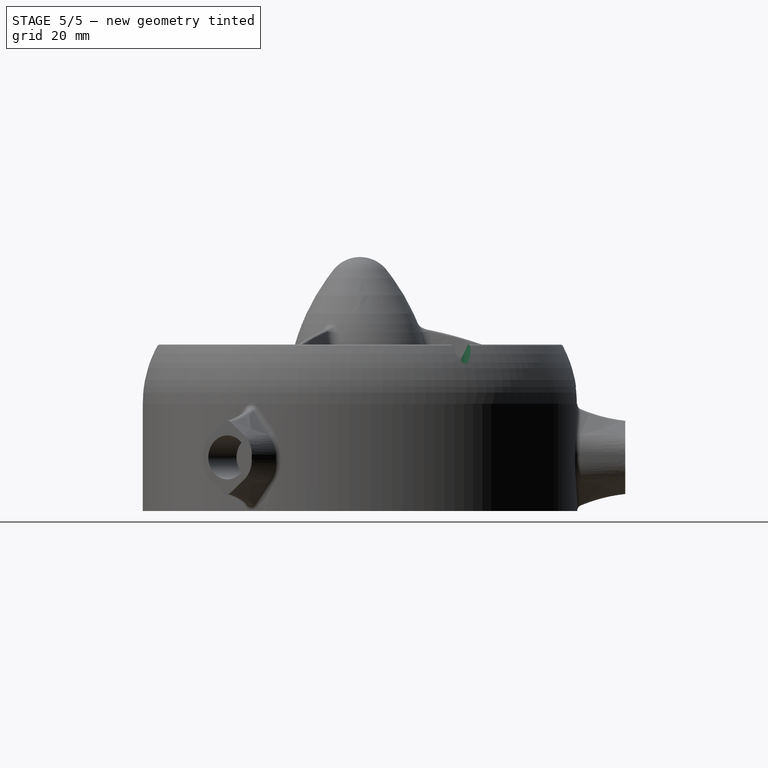
[diagram: stage 5 of 5 — right view after this stage's code; geometry added in this stage tinted green]
FEATURE [Sketcher::SketchObject] Sketch006
  MapMode = 5
  Placement = pos=(0,0,0) rot=(0,1,0;3.14159rad)
  Support = -> [XY_Plane]
  sketch-geometry (11):
    g0: ArcOfCircle CenterX=0 CenterY=0 CenterZ=0 NormalX=0 NormalY=0 NormalZ=1 AngleXU=0 Radius=10 StartAngle=2.04457 EndAngle=7.38021
    g1: ArcOfCircle CenterX=7.3 CenterY=14.2376 CenterZ=0 NormalX=0 NormalY=0 NormalZ=1 AngleXU=0 Radius=6 StartAngle=3.14159 EndAngle=4.23861
    g2: ArcOfCircle CenterX=-7.3 CenterY=14.2376 CenterZ=0 NormalX=0 NormalY=0 NormalZ=1 AngleXU=0 Radius=6 StartAngle=5.18617 EndAngle=6.28319
    g3: LineSegment StartX=-1.3 StartY=14.2376 StartZ=0 EndX=-1.3 EndY=34 EndZ=0
    g4: LineSegment StartX=1.3 StartY=14.2376 StartZ=0 EndX=1.3 EndY=34 EndZ=0
    g5: LineSegment [constr] StartX=-4.5625 StartY=8.89852 StartZ=0 EndX=4.5625 EndY=8.89852 EndZ=0
    g6: LineSegment StartX=-1.3 StartY=34 StartZ=0 EndX=-2.5 EndY=34 EndZ=0
    g7: LineSegment StartX=-2.5 StartY=34 StartZ=0 EndX=-2.5 EndY=41 EndZ=0
    g8: LineSegment StartX=-2.5 StartY=41 StartZ=0 EndX=2.5 EndY=41 EndZ=0
    g9: LineSegment StartX=2.5 StartY=41 StartZ=0 EndX=2.5 EndY=34 EndZ=0
    g10: LineSegment StartX=1.3 StartY=34 StartZ=0 EndX=2.5 EndY=34 EndZ=0
  constraints (30):
    c: Coincident(g0,g-1)
    c: Tangent(g1,g0) = 1.5708
    c: Tangent(g2,g0) = 1.5708
    c: Equal(g2,g1)
    c: Vertical(g3)
    c: Vertical(g4)
    c: Equal(g4,g3)
    c: Coincident(g5,g0)
    c: Coincident(g5,g0)
    c: Horizontal(g5)
    c: Tangent(g3,g2) = -1.5708
    c: Tangent(g4,g1) = 1.5708
    c: Diameter(g0) = 20
    c: DistanceX(g3,g4) = 2.6
    c: Radius(g2) = 6
    c: DistanceY(g0,g3) = 34
    c: Coincident(g6,g3)
    c: Horizontal(g6)
    c: Coincident(g7,g6)
    c: Vertical(g7)
    c: Coincident(g8,g7)
    c: Horizontal(g8)
    c: Coincident(g9,g8)
    c: Vertical(g9)
    c: Coincident(g10,g4)
    c: Coincident(g10,g9)
    c: Horizontal(g10)
    c: Equal(g10,g6)
    c: DistanceY(g7,g7) = 7
    c: DistanceX(g8,g8) = 5
FEATURE [PartDesign::Pocket] Pocket001
  BaseFeature = -> Fillet
  Length = 3
  Length2 = 100
  Placement = pos=(0,0,0) rot=(1,0,0;1.5708rad)
  Profile = -> Sketch006
  Type = 0
FEATURE [Sketcher::SketchObject] Sketch007
  MapMode = 5
  Placement = pos=(0,0,0) rot=(0,1,0;3.14159rad)
  Support = -> [XY_Plane]
  sketch-geometry (1):
    g0: Circle CenterX=0 CenterY=0 CenterZ=0 NormalX=0 NormalY=0 NormalZ=1 AngleXU=0 Radius=5
  constraints (2):
    c: Coincident(g0,g-1)
    c: Diameter(g0) = 10
FEATURE [PartDesign::Hole] Hole
  BaseFeature = -> Pocket001
  Depth = 6
  DepthType = 0
  Diameter = 2.8
  DrillPoint = 0
  DrillPointAngle = 118
  HoleCutCountersinkAngle = 90
  HoleCutDepth = 1.8
  HoleCutDiameter = 10
  HoleCutType = 1
  ModelActualThread = false
  Placement = pos=(0,0,0) rot=(1,0,0;1.5708rad)
  Profile = -> Sketch007
  Tapered = false
  TaperedAngle = 90
  ThreadAngle = 0
  ThreadClass = 0
  ThreadCutOffInner = 0
  ThreadCutOffOuter = 0
  ThreadDirection = 0
  ThreadFit = 0
  ThreadPitch = 0
  ThreadSize = 0
  ThreadType = 0
  Threaded = false
FEATURE [Sketcher::SketchObject] Sketch008
  AttachmentOffset = pos=(0,0,12) rot=(0,0,1;0rad)
  MapMode = 5
  Placement = pos=(0,0,12) rot=(0,0,1;0rad)
  Support = -> [XY_Plane]
  sketch-geometry (1):
    g0: Circle CenterX=0 CenterY=-35.5 CenterZ=0 NormalX=0 NormalY=0 NormalZ=1 AngleXU=0 Radius=5
  constraints (3):
    c: PointOnObject(g0,g-2)
    c: Diameter(g0) = 10
    c: DistanceY(g0,g-1) = 35.5
FEATURE [PartDesign::Hole] Hole001
  BaseFeature = -> Hole
  Depth = 25
  DepthType = 0
  Diameter = 2.2
  DrillPoint = 1
  DrillPointAngle = 118
  HoleCutCountersinkAngle = 90
  HoleCutDepth = 6
  HoleCutDiameter = 3.6
  HoleCutType = 1
  ModelActualThread = false
  Placement = pos=(0,0,0) rot=(1,0,0;1.5708rad)
  Profile = -> Sketch008
  Tapered = false
  TaperedAngle = 90
  ThreadAngle = 0
  ThreadClass = 0
  ThreadCutOffInner = 0
  ThreadCutOffOuter = 0
  ThreadDirection = 0
  ThreadFit = 0
  ThreadPitch = 0
  ThreadSize = 0
  ThreadType = 0
  Threaded = false
FEATURE [PartDesign::PolarPattern] PolarPattern001
  Angle = 360
  Axis = -> Z_Axis
  BaseFeature = -> Hole001
  Occurrences = 3
  Originals = -> [Hole001]
  Placement = pos=(0,0,0) rot=(1,0,0;1.5708rad)
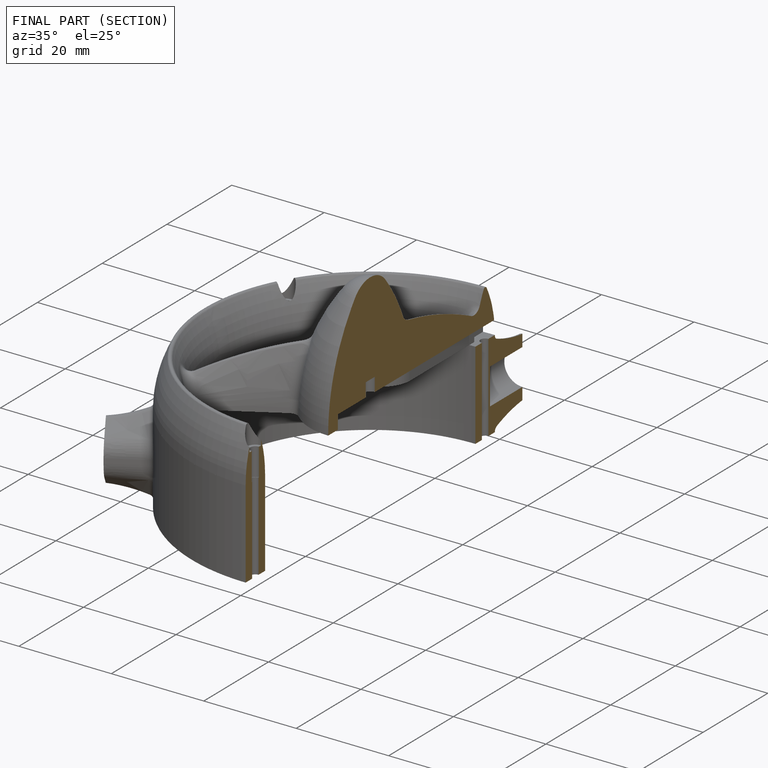
[diagram: finished part — half-section view (interior)]
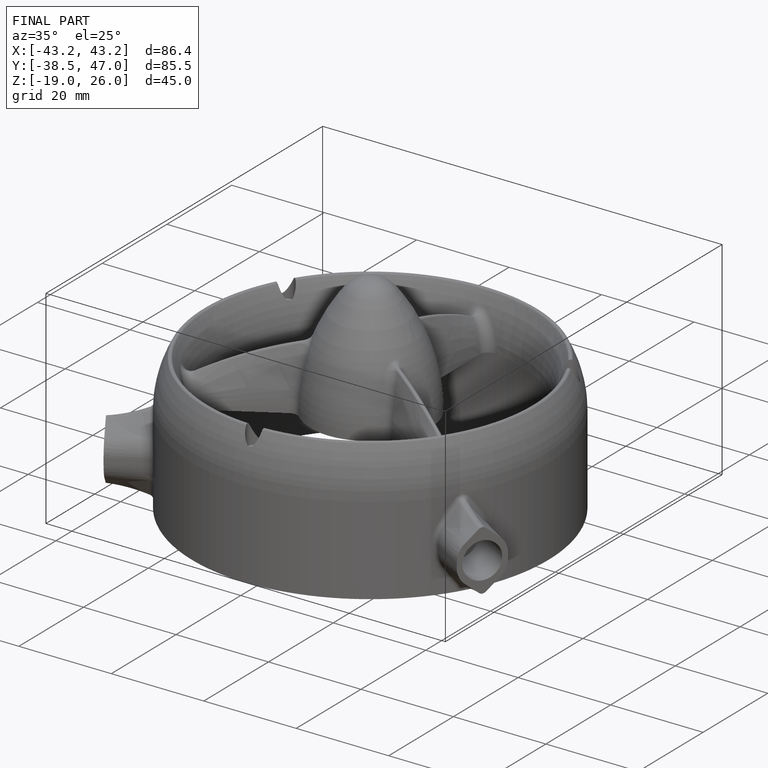
[diagram: finished part — iso view with bounding-box wireframe]
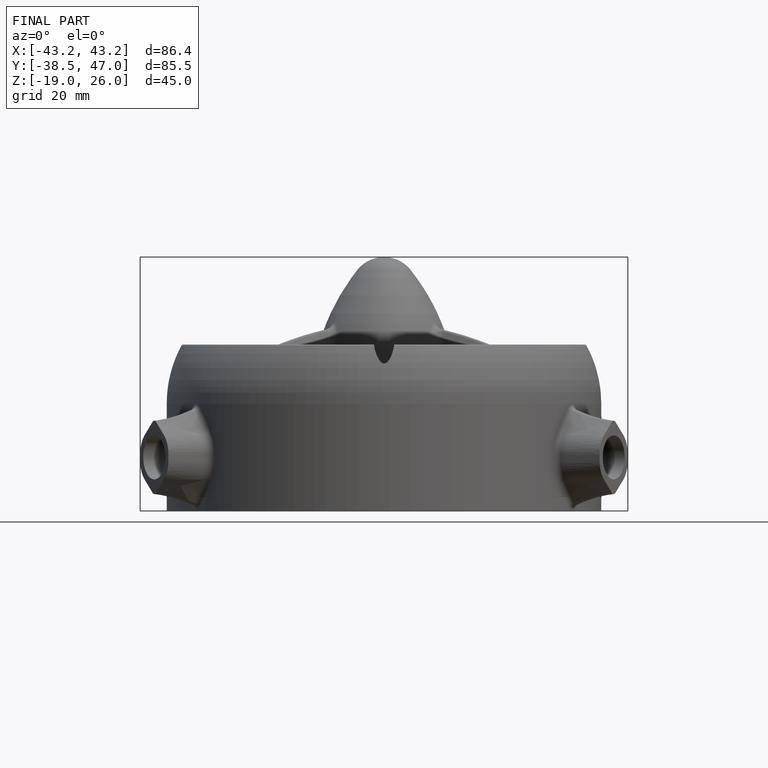
[diagram: finished part — front view with bounding-box wireframe]
